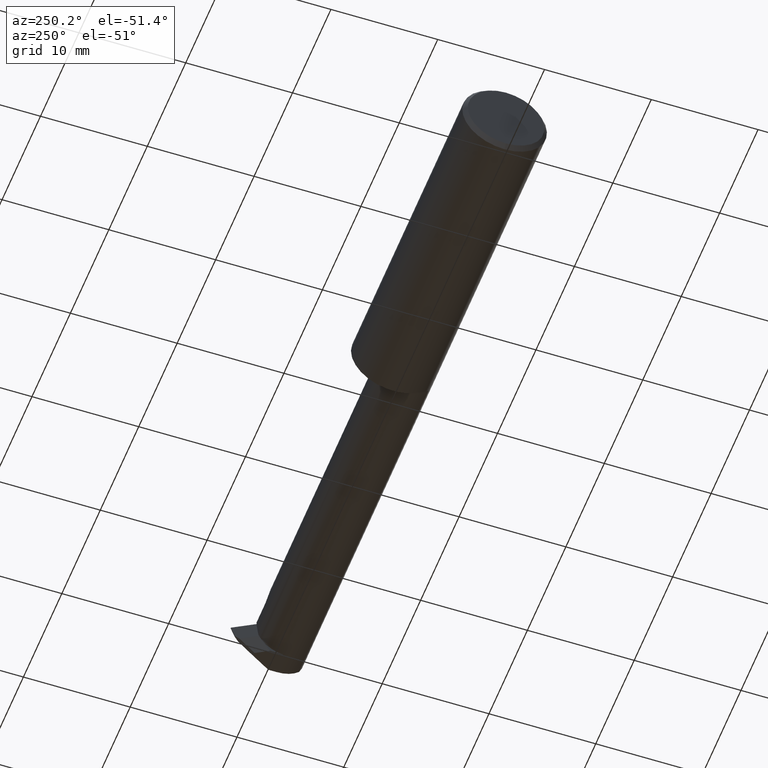
[diagram: clean part render]
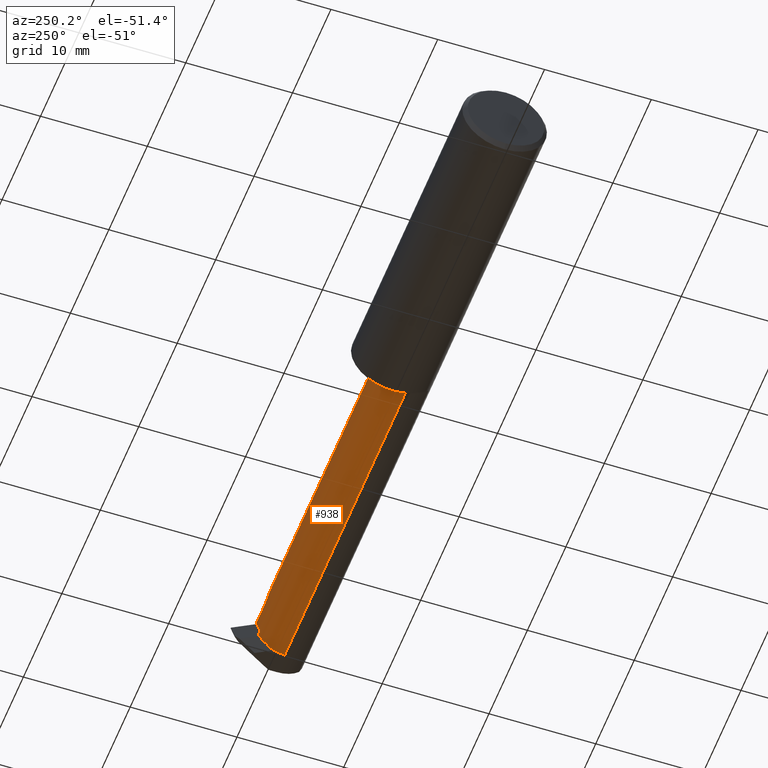
[diagram: same view with one face highlighted and labeled with its STEP entity id]
A machine part, auxiliary view. The second image highlights one B-rep face of the part: STEP entity #938.
In plain terms, the highlighted cylindrical surface (edge-blend (fillet) strip) has radius 2.8194 mm, axis along (-1, -0, -0).
Its self-contained STEP definition (entity closure, byte-faithful):
#1 = DIRECTION ( 'NONE',  ( 0.000000000000000000, 0.000000000000000000, 1.000000000000000000 ) ) ;
#33 = DIRECTION ( 'NONE',  ( 0.000000000000000000, 0.000000000000000000, -1.000000000000000000 ) ) ;
#37 = ORIENTED_EDGE ( 'NONE', *, *, #137, .F. ) ;
#42 = VERTEX_POINT ( 'NONE', #380 ) ;
#47 = DIRECTION ( 'NONE',  ( -1.000000000000000000, -0.000000000000000000, -0.000000000000000000 ) ) ;
#58 = LINE ( 'NONE', #937, #886 ) ;
#75 = CARTESIAN_POINT ( 'NONE',  ( 2.412458785480013024, 0.03700406005429841827, -0.06195031978540700007 ) ) ;
#85 = CARTESIAN_POINT ( 'NONE',  ( 2.412458785480013024, 0.006850319785407048105, -0.09210406005429837284 ) ) ;
#93 = CARTESIAN_POINT ( 'NONE',  ( 1.155000000000000027, -0.05509999999999999620, 0.000000000000000000 ) ) ;
#136 = ORIENTED_EDGE ( 'NONE', *, *, #398, .F. ) ;
#137 = EDGE_CURVE ( 'NONE', #437, #303, #612, .T. ) ;
#181 = CARTESIAN_POINT ( 'NONE',  ( 2.412458785480013024, 0.03700406005429841827, -0.06195031978540700007 ) ) ;
#199 = CARTESIAN_POINT ( 'NONE',  ( 2.199100000000000943, 0.009875857480521079562, 0.1110000000000000014 ) ) ;
#212 = CARTESIAN_POINT ( 'NONE',  ( 2.400999999999999801, 0.05590000000000001218, 0.000000000000000000 ) ) ;
#213 = VERTEX_POINT ( 'NONE', #560 ) ;
#216 = CARTESIAN_POINT ( 'NONE',  ( 2.199100000000000499, -0.05509999999999999620, 0.1110000000000000014 ) ) ;
#217 = ORIENTED_EDGE ( 'NONE', *, *, #242, .T. ) ;
#219 = CARTESIAN_POINT ( 'NONE',  ( 1.155000000000000027, 0.04536493059887179019, -0.04719955211401773848 ) ) ;
#238 = CARTESIAN_POINT ( 'NONE',  ( 2.414716234995701871, 0.02897099956963808051, -0.07389339752676279960 ) ) ;
#241 = FACE_BOUND ( 'NONE', #798, .T. ) ;
#242 = EDGE_CURVE ( 'NONE', #716, #587, #475, .T. ) ;
#251 = EDGE_CURVE ( 'NONE', #42, #716, #933, .T. ) ;
#252 = VECTOR ( 'NONE', #407, 39.37007874015748143 ) ;
#263 =( BOUNDED_CURVE ( )  B_SPLINE_CURVE ( 3, ( #269, #626, #264, #856 ),
 .UNSPECIFIED., .F., .T. ) 
 B_SPLINE_CURVE_WITH_KNOTS ( ( 4, 4 ),
 ( 3.320488901919218083, 4.452078972209921659 ),
 .UNSPECIFIED. ) 
 CURVE ( )  GEOMETRIC_REPRESENTATION_ITEM ( )  RATIONAL_B_SPLINE_CURVE ( ( 1.000000000000000000, 0.8961084394353004967, 0.8961084394353004967, 1.000000000000000000 ) ) 
 REPRESENTATION_ITEM ( '' )  );
#264 = CARTESIAN_POINT ( 'NONE',  ( 2.416039260333789240, 0.02654051824741836610, -0.08726758657088898308 ) ) ;
#269 = CARTESIAN_POINT ( 'NONE',  ( 2.419930999995322018, -0.05510000000000081499, -0.1109999999999999876 ) ) ;
#280 = CARTESIAN_POINT ( 'NONE',  ( 2.392464930598871664, 0.04536493059887180407, -0.04719955211401773154 ) ) ;
#296 = VERTEX_POINT ( 'NONE', #566 ) ;
#298 = EDGE_CURVE ( 'NONE', #418, #926, #877, .T. ) ;
#303 = VERTEX_POINT ( 'NONE', #574 ) ;
#309 = EDGE_CURVE ( 'NONE', #42, #437, #423, .T. ) ;
#311 = DIRECTION ( 'NONE',  ( 1.000000000000000000, -0.000000000000000000, -0.000000000000000000 ) ) ;
#339 = EDGE_LOOP ( 'NONE', ( #725, #693, #494, #37, #671, #517, #217, #882, #649 ) ) ;
#351 = CARTESIAN_POINT ( 'NONE',  ( 2.310000000000000053, 0.05590000000000001218, -3.979970649922725226E-17 ) ) ;
#354 = EDGE_CURVE ( 'NONE', #926, #587, #814, .T. ) ;
#356 =( BOUNDED_CURVE ( )  B_SPLINE_CURVE ( 3, ( #75, #238, #680, #85 ),
 .UNSPECIFIED., .F., .T. ) 
 B_SPLINE_CURVE_WITH_KNOTS ( ( 4, 4 ),
 ( 2.948301984786019236, 3.334883322393566996 ),
 .UNSPECIFIED. ) 
 CURVE ( )  GEOMETRIC_REPRESENTATION_ITEM ( )  RATIONAL_B_SPLINE_CURVE ( ( 1.000000000000000000, 0.9875849649017649501, 0.9875849649017649501, 1.000000000000000000 ) ) 
 REPRESENTATION_ITEM ( '' )  );
#380 = CARTESIAN_POINT ( 'NONE',  ( 2.310000000000000053, 0.05589995495494588795, 9.999999999973052634E-05 ) ) ;
#390 = DIRECTION ( 'NONE',  ( 0.000000000000000000, 0.000000000000000000, 1.000000000000000000 ) ) ;
#398 = EDGE_CURVE ( 'NONE', #476, #568, #821, .T. ) ;
#407 = DIRECTION ( 'NONE',  ( 1.000000000000000000, 0.000000000000000000, 0.000000000000000000 ) ) ;
#409 = AXIS2_PLACEMENT_3D ( 'NONE', #696, #47, #719 ) ;
#418 = VERTEX_POINT ( 'NONE', #451 ) ;
#423 =( BOUNDED_CURVE ( )  B_SPLINE_CURVE ( 3, ( #791, #642, #199, #216 ),
 .UNSPECIFIED., .F., .T. ) 
 B_SPLINE_CURVE_WITH_KNOTS ( ( 4, 4 ),
 ( 4.713289881407453308, 6.283185307179586232 ),
 .UNSPECIFIED. ) 
 CURVE ( )  GEOMETRIC_REPRESENTATION_ITEM ( )  RATIONAL_B_SPLINE_CURVE ( ( 1.000000000000000000, 0.8049501506993195221, 0.8049501506993195221, 1.000000000000000000 ) ) 
 REPRESENTATION_ITEM ( '' )  );
#437 = VERTEX_POINT ( 'NONE', #820 ) ;
#451 = CARTESIAN_POINT ( 'NONE',  ( 2.411644403619502608, 0.04536493059887507229, -0.04719955211401832829 ) ) ;
#458 = CYLINDRICAL_SURFACE ( 'NONE', #670, 0.1110000000000000014 ) ;
#466 = CARTESIAN_POINT ( 'NONE',  ( 2.392464930598871664, 0.04536493059887180407, -0.04719955211401773154 ) ) ;
#470 = CARTESIAN_POINT ( 'NONE',  ( 2.400999999999999801, 0.05590000000000001218, 0.000000000000000000 ) ) ;
#475 = LINE ( 'NONE', #765, #252 ) ;
#476 = VERTEX_POINT ( 'NONE', #815 ) ;
#483 = VECTOR ( 'NONE', #862, 39.37007874015748143 ) ;
#494 = ORIENTED_EDGE ( 'NONE', *, *, #577, .T. ) ;
#510 = EDGE_CURVE ( 'NONE', #568, #476, #356, .T. ) ;
#517 = ORIENTED_EDGE ( 'NONE', *, *, #251, .T. ) ;
#555 = ORIENTED_EDGE ( 'NONE', *, *, #510, .F. ) ;
#557 = CIRCLE ( 'NONE', #855, 0.1110000000000000014 ) ;
#560 = CARTESIAN_POINT ( 'NONE',  ( 2.419930999995322018, -0.05510000000000081499, -0.1109999999999999876 ) ) ;
#563 = EDGE_CURVE ( 'NONE', #213, #418, #263, .T. ) ;
#566 = CARTESIAN_POINT ( 'NONE',  ( 1.180000000000000160, -0.05509999999999998233, -0.1110000000000000014 ) ) ;
#568 = VERTEX_POINT ( 'NONE', #181 ) ;
#574 = CARTESIAN_POINT ( 'NONE',  ( 1.180000000000000160, -0.05509999999999999620, 0.1110000000000000014 ) ) ;
#577 = EDGE_CURVE ( 'NONE', #296, #303, #557, .T. ) ;
#587 = VERTEX_POINT ( 'NONE', #470 ) ;
#612 = LINE ( 'NONE', #627, #883 ) ;
#626 = CARTESIAN_POINT ( 'NONE',  ( 2.419121698429875345, -0.01083030511044178260, -0.1110000000000003900 ) ) ;
#627 = CARTESIAN_POINT ( 'NONE',  ( 1.155000000000000027, -0.05509999999999999620, 0.1110000000000000014 ) ) ;
#642 = CARTESIAN_POINT ( 'NONE',  ( 2.245024168887416405, 0.05584141814640498219, 0.06507583111258367914 ) ) ;
#649 = ORIENTED_EDGE ( 'NONE', *, *, #298, .F. ) ;
#670 = AXIS2_PLACEMENT_3D ( 'NONE', #93, #763, #390 ) ;
#671 = ORIENTED_EDGE ( 'NONE', *, *, #309, .F. ) ;
#672 = CARTESIAN_POINT ( 'NONE',  ( 2.412458785480013024, -0.05509999999999999620, 0.000000000000000000 ) ) ;
#680 = CARTESIAN_POINT ( 'NONE',  ( 2.414716234995701871, 0.01879339752676281033, -0.08407099956963805243 ) ) ;
#690 = DIRECTION ( 'NONE',  ( 1.000000000000000000, 0.000000000000000000, 0.000000000000000000 ) ) ;
#693 = ORIENTED_EDGE ( 'NONE', *, *, #952, .T. ) ;
#696 = CARTESIAN_POINT ( 'NONE',  ( 2.310000000000000053, -0.05509999999999999620, 0.000000000000000000 ) ) ;
#703 = DIRECTION ( 'NONE',  ( -1.000000000000000000, -0.000000000000000000, -0.000000000000000000 ) ) ;
#704 = CARTESIAN_POINT ( 'NONE',  ( 1.180000000000000160, -0.05509999999999999620, 0.000000000000000000 ) ) ;
#716 = VERTEX_POINT ( 'NONE', #351 ) ;
#719 = DIRECTION ( 'NONE',  ( 0.000000000000000000, 0.000000000000000000, 1.000000000000000000 ) ) ;
#725 = ORIENTED_EDGE ( 'NONE', *, *, #563, .F. ) ;
#763 = DIRECTION ( 'NONE',  ( -1.000000000000000000, -0.000000000000000000, -0.000000000000000000 ) ) ;
#765 = CARTESIAN_POINT ( 'NONE',  ( 1.155000000000000027, 0.05590000000000001218, -3.979970649922725226E-17 ) ) ;
#791 = CARTESIAN_POINT ( 'NONE',  ( 2.310000000000000053, 0.05589995495494588795, 9.999999999973052634E-05 ) ) ;
#798 = EDGE_LOOP ( 'NONE', ( #136, #555 ) ) ;
#814 =( BOUNDED_CURVE ( )  B_SPLINE_CURVE ( 3, ( #280, #945, #955, #212 ),
 .UNSPECIFIED., .F., .F. ) 
 B_SPLINE_CURVE_WITH_KNOTS ( ( 4, 4 ),
 ( 1.131590070290673378, 1.570796326794881681 ),
 .UNSPECIFIED. ) 
 CURVE ( )  GEOMETRIC_REPRESENTATION_ITEM ( )  RATIONAL_B_SPLINE_CURVE ( ( 1.000000000000000000, 0.9839893210965720005, 0.9839893210965720005, 1.000000000000000000 ) ) 
 REPRESENTATION_ITEM ( '' )  );
#815 = CARTESIAN_POINT ( 'NONE',  ( 2.412458785480013024, 0.006850319785407048105, -0.09210406005429837284 ) ) ;
#820 = CARTESIAN_POINT ( 'NONE',  ( 2.199100000000000499, -0.05509999999999999620, 0.1110000000000000014 ) ) ;
#821 = CIRCLE ( 'NONE', #947, 0.1110000000000000014 ) ;
#826 = FACE_OUTER_BOUND ( 'NONE', #339, .T. ) ;
#855 = AXIS2_PLACEMENT_3D ( 'NONE', #704, #690, #33 ) ;
#856 = CARTESIAN_POINT ( 'NONE',  ( 2.411644403619502608, 0.04536493059887507229, -0.04719955211401832829 ) ) ;
#862 = DIRECTION ( 'NONE',  ( -1.000000000000000000, -0.000000000000000000, -0.000000000000000000 ) ) ;
#877 = LINE ( 'NONE', #219, #483 ) ;
#882 = ORIENTED_EDGE ( 'NONE', *, *, #354, .F. ) ;
#883 = VECTOR ( 'NONE', #925, 39.37007874015748143 ) ;
#886 = VECTOR ( 'NONE', #703, 39.37007874015748143 ) ;
#925 = DIRECTION ( 'NONE',  ( -1.000000000000000000, -0.000000000000000000, -0.000000000000000000 ) ) ;
#926 = VERTEX_POINT ( 'NONE', #466 ) ;
#933 = CIRCLE ( 'NONE', #409, 0.1110000000000000014 ) ;
#937 = CARTESIAN_POINT ( 'NONE',  ( 1.155000000000000027, -0.05509999999999998233, -0.1110000000000000014 ) ) ;
#938 = ADVANCED_FACE ( 'NONE', ( #241, #826 ), #458, .T. ) ;
#945 = CARTESIAN_POINT ( 'NONE',  ( 2.395146223367075944, 0.05233117082158721123, -0.03237180885875237668 ) ) ;
#947 = AXIS2_PLACEMENT_3D ( 'NONE', #672, #311, #1 ) ;
#952 = EDGE_CURVE ( 'NONE', #213, #296, #58, .T. ) ;
#955 = CARTESIAN_POINT ( 'NONE',  ( 2.398037538417669534, 0.05590000000000001218, -0.01638262716674719274 ) ) ;